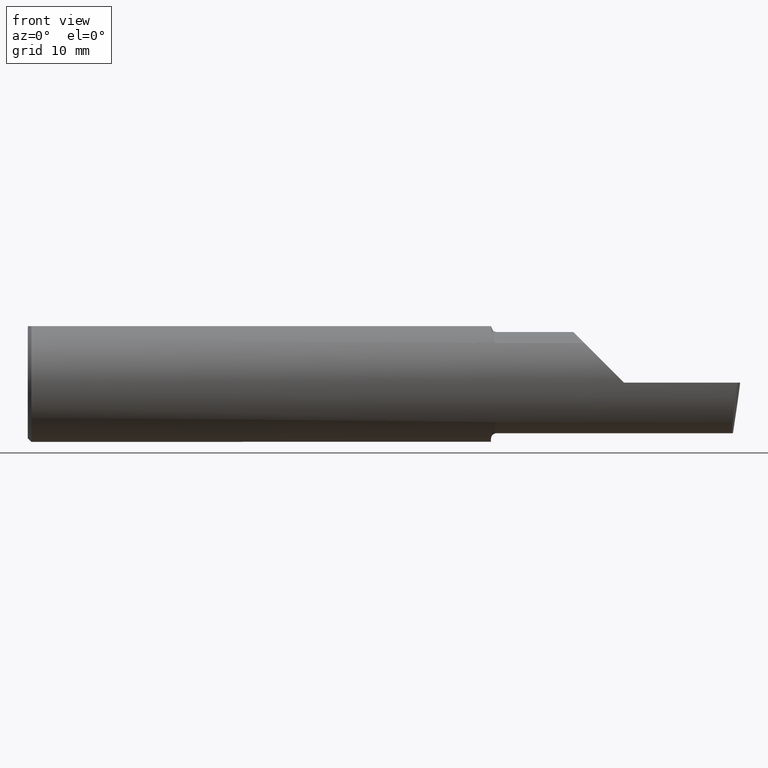
[diagram: clean part render]
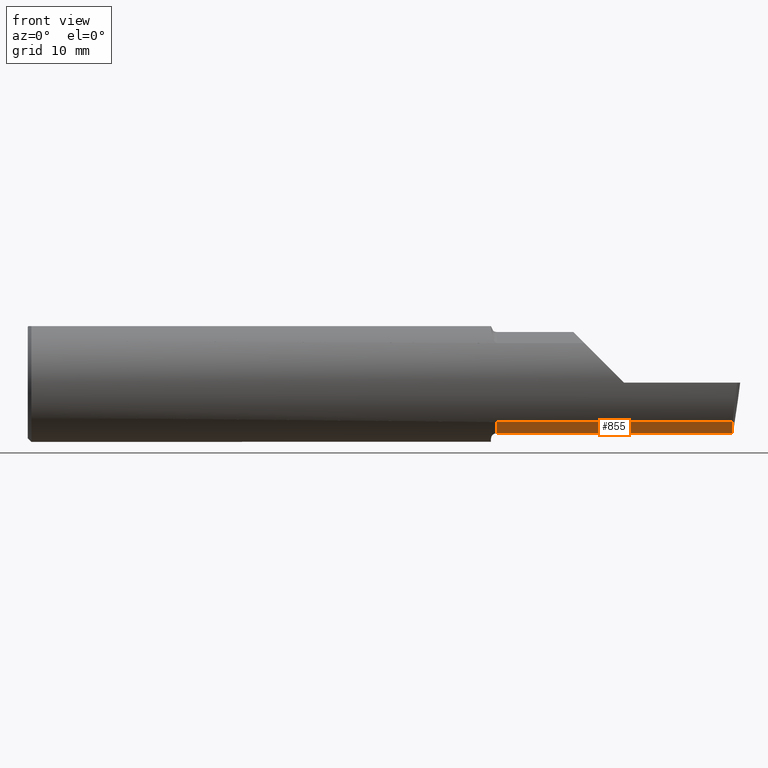
[diagram: same view with one face highlighted and labeled with its STEP entity id]
A machine part, front view. The second image highlights one B-rep face of the part: STEP entity #855.
In plain terms, the highlighted cylindrical surface (partial cylindrical patch) has radius 5.414 mm, axis along (-1, -0, -0).
Its self-contained STEP definition (entity closure, byte-faithful):
#19 = CARTESIAN_POINT ( 'NONE',  ( 0.000000000000000000, -0.05299999999999998462, 0.000000000000000000 ) ) ;
#37 = DIRECTION ( 'NONE',  ( 0.000000000000000000, 0.000000000000000000, 1.000000000000000000 ) ) ;
#61 = VERTEX_POINT ( 'NONE', #312 ) ;
#128 = CARTESIAN_POINT ( 'NONE',  ( 2.968492717492763777, -0.1868028301886794917, -0.1659208399614086338 ) ) ;
#129 = VERTEX_POINT ( 'NONE', #731 ) ;
#137 = DIRECTION ( 'NONE',  ( -1.000000000000000000, 5.691349986800549142E-18, -0.000000000000000000 ) ) ;
#149 = DIRECTION ( 'NONE',  ( 0.000000000000000000, 0.000000000000000000, 1.000000000000000000 ) ) ;
#216 = VECTOR ( 'NONE', #137, 39.37007874015748143 ) ;
#228 = EDGE_CURVE ( 'NONE', #129, #558, #633, .T. ) ;
#261 = CARTESIAN_POINT ( 'NONE',  ( 2.966195468375009803, -0.05299999999999998462, -0.2131499999999999229 ) ) ;
#270 = LINE ( 'NONE', #407, #216 ) ;
#285 = AXIS2_PLACEMENT_3D ( 'NONE', #19, #472, #149 ) ;
#295 = EDGE_CURVE ( 'NONE', #61, #506, #308, .T. ) ;
#308 = CIRCLE ( 'NONE', #522, 0.2131499999999998951 ) ;
#312 = CARTESIAN_POINT ( 'NONE',  ( 1.975000000000000089, -0.05299999999999996381, -0.2131499999999998951 ) ) ;
#329 = FACE_OUTER_BOUND ( 'NONE', #795, .T. ) ;
#342 = CARTESIAN_POINT ( 'NONE',  ( 1.975000000000000089, -0.1868028301886793530, -0.1659208399614086338 ) ) ;
#370 = DIRECTION ( 'NONE',  ( -1.000000000000000000, -0.000000000000000000, -0.000000000000000000 ) ) ;
#394 = CARTESIAN_POINT ( 'NONE',  ( 2.965703997523712054, -0.1485302233682059547, -0.1967848538638756750 ) ) ;
#407 = CARTESIAN_POINT ( 'NONE',  ( 3.000000000000000444, -0.05299999999999998462, -0.2131499999999999229 ) ) ;
#424 = LINE ( 'NONE', #760, #788 ) ;
#430 = VERTEX_POINT ( 'NONE', #854 ) ;
#472 = DIRECTION ( 'NONE',  ( -1.000000000000000000, -0.000000000000000000, -0.000000000000000000 ) ) ;
#493 = CARTESIAN_POINT ( 'NONE',  ( 1.975000000000000089, -0.05299999999999998462, 0.000000000000000000 ) ) ;
#499 = ORIENTED_EDGE ( 'NONE', *, *, #827, .F. ) ;
#506 = VERTEX_POINT ( 'NONE', #342 ) ;
#522 = AXIS2_PLACEMENT_3D ( 'NONE', #493, #625, #37 ) ;
#525 = ORIENTED_EDGE ( 'NONE', *, *, #295, .F. ) ;
#558 = VERTEX_POINT ( 'NONE', #668 ) ;
#625 = DIRECTION ( 'NONE',  ( -1.000000000000000000, -0.000000000000000000, -0.000000000000000000 ) ) ;
#633 =( BOUNDED_CURVE ( )  B_SPLINE_CURVE ( 3, ( #128, #394, #657, #261 ),
 .UNSPECIFIED., .F., .T. ) 
 B_SPLINE_CURVE_WITH_KNOTS ( ( 4, 4 ),
 ( 5.814587959757460567, 6.493234751459699972 ),
 .UNSPECIFIED. ) 
 CURVE ( )  GEOMETRIC_REPRESENTATION_ITEM ( )  RATIONAL_B_SPLINE_CURVE ( ( 1.000000000000000000, 0.9619867256453022986, 0.9619867256453022986, 1.000000000000000000 ) ) 
 REPRESENTATION_ITEM ( '' )  );
#657 = CARTESIAN_POINT ( 'NONE',  ( 2.964907988924524673, -0.1021668565906569681, -0.2131499999999999784 ) ) ;
#668 = CARTESIAN_POINT ( 'NONE',  ( 2.966195468375009803, -0.05299999999999998462, -0.2131499999999999229 ) ) ;
#676 = VECTOR ( 'NONE', #370, 39.37007874015748143 ) ;
#685 = LINE ( 'NONE', #825, #676 ) ;
#714 = EDGE_CURVE ( 'NONE', #129, #506, #424, .T. ) ;
#718 = EDGE_CURVE ( 'NONE', #430, #61, #685, .T. ) ;
#724 = ORIENTED_EDGE ( 'NONE', *, *, #718, .F. ) ;
#728 = ORIENTED_EDGE ( 'NONE', *, *, #228, .F. ) ;
#731 = CARTESIAN_POINT ( 'NONE',  ( 2.968492717492763777, -0.1868028301886794917, -0.1659208399614086338 ) ) ;
#760 = CARTESIAN_POINT ( 'NONE',  ( 2.260000000000000231, -0.1868028301886794917, -0.1659208399614086338 ) ) ;
#764 = DIRECTION ( 'NONE',  ( -1.000000000000000000, -0.000000000000000000, -0.000000000000000000 ) ) ;
#788 = VECTOR ( 'NONE', #764, 39.37007874015748143 ) ;
#795 = EDGE_LOOP ( 'NONE', ( #724, #499, #728, #813, #525 ) ) ;
#798 = CYLINDRICAL_SURFACE ( 'NONE', #285, 0.2131499999999999506 ) ;
#813 = ORIENTED_EDGE ( 'NONE', *, *, #714, .T. ) ;
#825 = CARTESIAN_POINT ( 'NONE',  ( 0.000000000000000000, -0.05299999999999996381, -0.2131499999999999506 ) ) ;
#827 = EDGE_CURVE ( 'NONE', #558, #430, #270, .T. ) ;
#854 = CARTESIAN_POINT ( 'NONE',  ( 2.545000000000000373, -0.05299999999999998462, -0.2131499999999999229 ) ) ;
#855 = ADVANCED_FACE ( 'NONE', ( #329 ), #798, .T. ) ;